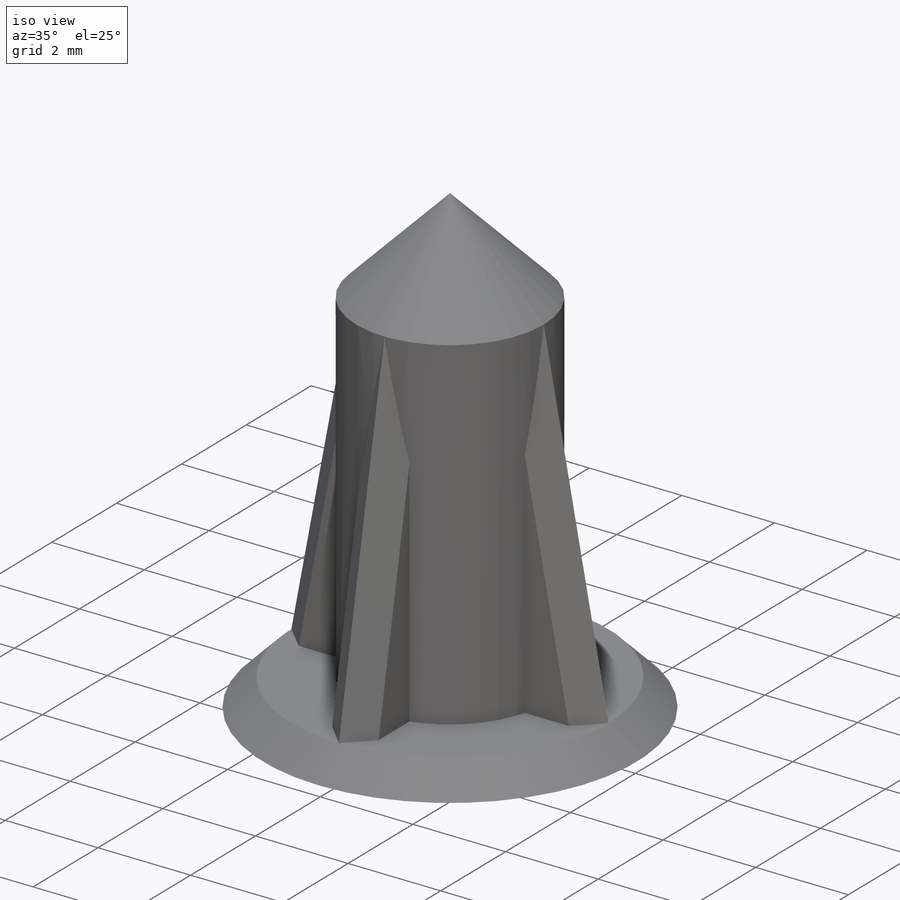
[diagram: iso view]
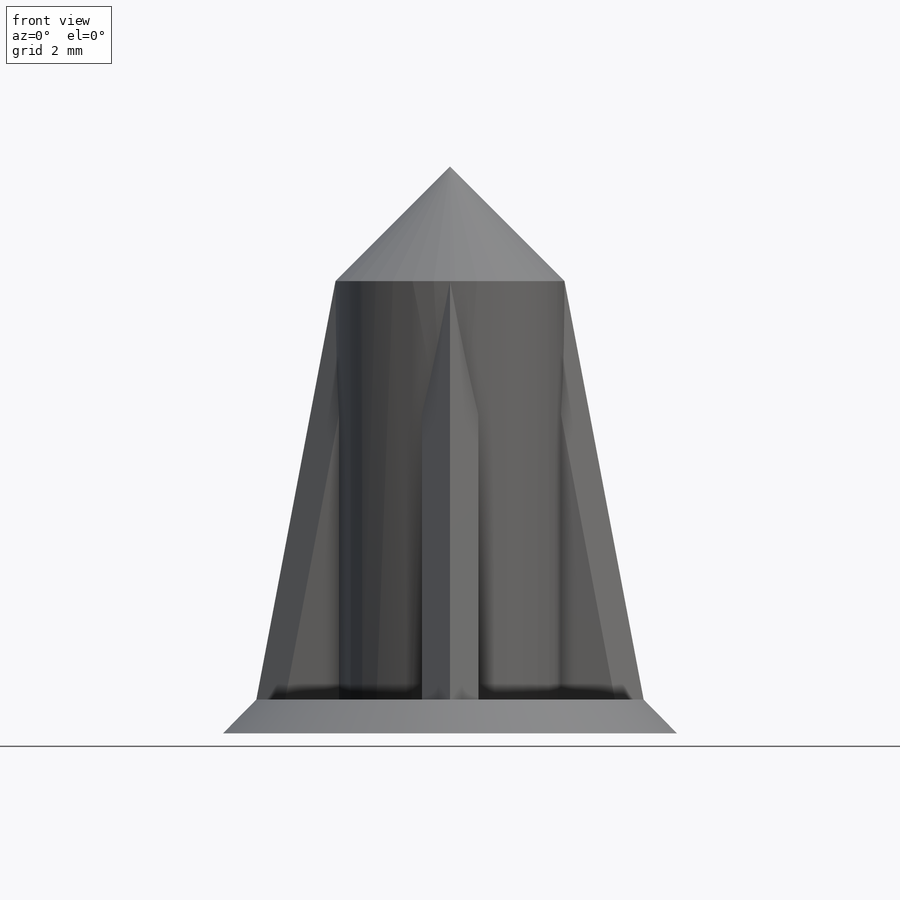
[diagram: front view]
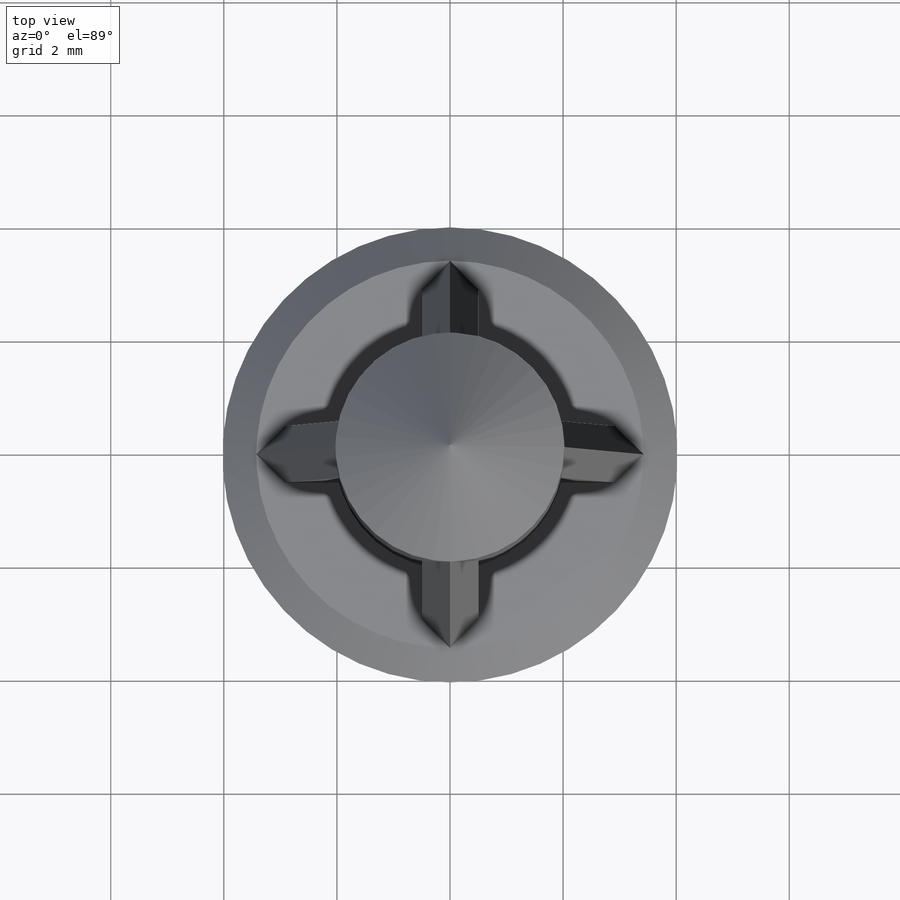
[diagram: top view]
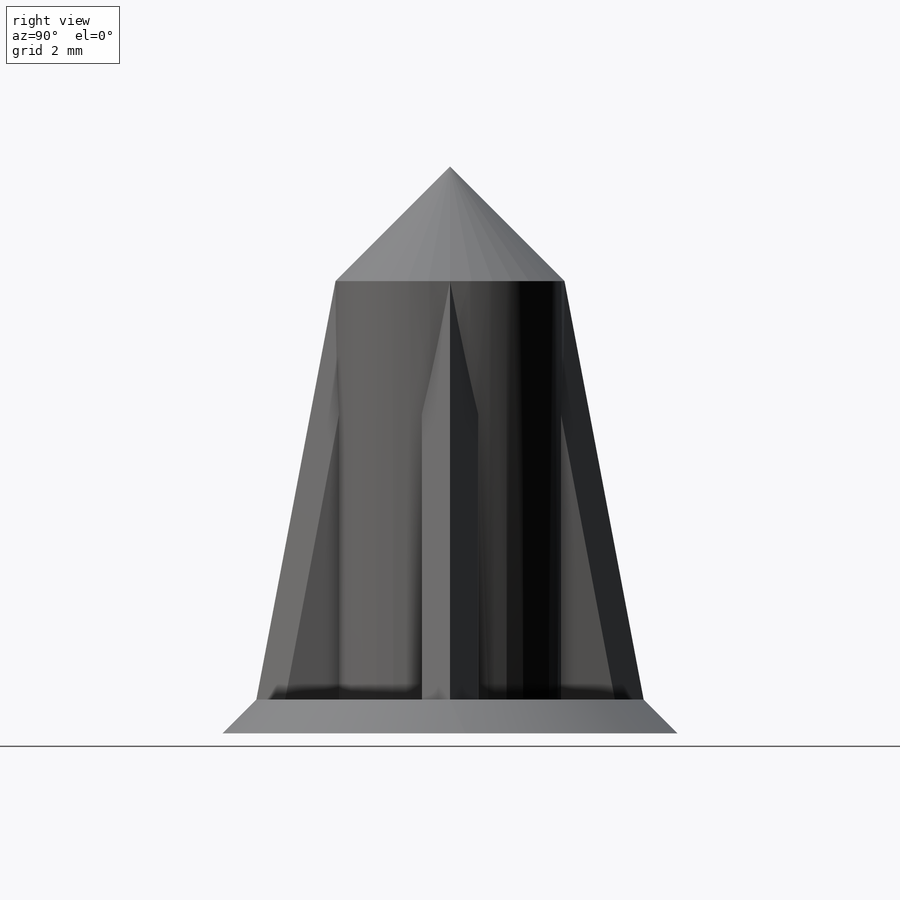
[diagram: right view]
SOLIDWORKS PART (.sldprt)
format: sldprt  version: not decoded by parser v0  size: 255,488 bytes
history: native  units: mm
features: sketch x4, extrude x3, chamfer x3, material x1, pattern_circular x1, revolve x1 (+12 scaffold rows collapsed)
feature tree (25):
  scaffold x12  (default folders/planes/origin — collapsed)
  material  "Material <not specified>"
  sketch  "Sketch1"  dims[D1=2.25mm D2=0.9mm]
  extrude  "Boss-Extrude1"  Depth=8mm
  sketch  "Sketch2"  dims[D1=2.0mm]
  extrude  "Boss-Extrude2"  Depth=0.6mm
  chamfer  "Chamfer1"  Distance=0.6mm Angle=45deg
  sketch  "Sketch3"  dims[D1=~2.138383mm]
  extrude  "Boss-Extrude3"  Depth=0.5mm
  pattern_circular  "CirPattern2"  Count=4  [1 undecoded]
  chamfer  "Chamfer2"  Distance=0.5mm
  sketch  "Sketch4"  dims[D1=~4.889719mm]
  revolve  "Revolve1"  [1 undecoded]
  chamfer  "Chamfer3"  Distance=0.6mm
decode coverage: 11 of 12 modeling features carry decoded parameters
note: ~ marks probable driven/reference dimensions
note: 2 parameter values undecoded
note: suppression state not decoded; provenance and decode notes live in map.json
